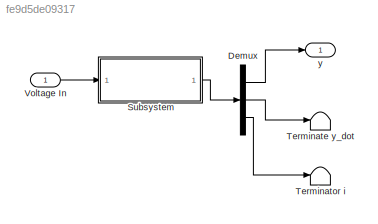
MODEL slx_fe9d5de09317
KIND model
CONFIG AbsTol = auto
CONFIG EnableMultiTasking = off
CONFIG FixedStep = auto
CONFIG MaxStep = auto
CONFIG MinStep = auto
CONFIG RelTol = 1e-3
CONFIG SampleTimeConstraint = Unconstrained
CONFIG SolverName = VariableStepAuto
CONFIG StartTime = 0.0
CONFIG StopTime = 10.0
BLOCK [Demux] Demux
  Outputs = 3
  Ports = [1, 3]
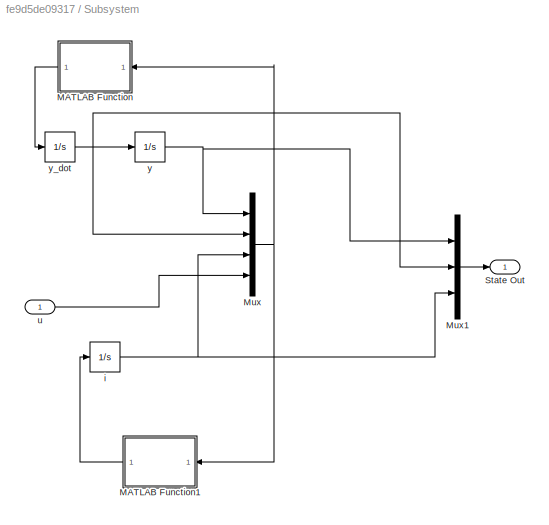
BLOCK [SubSystem] Subsystem
  Ports = [1, 1]
  RequestExecContextInheritance = off
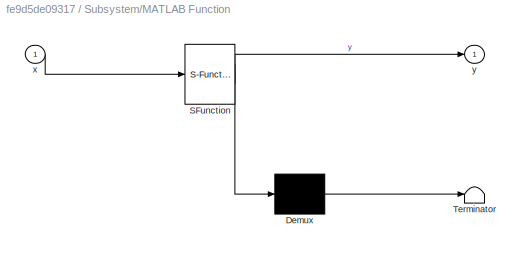
BLOCK [SubSystem] Subsystem/MATLAB Function
  ErrorFcn = Stateflow.Translate.translate
  PermitHierarchicalResolution = ExplicitOnly
  Ports = [1, 1]
  RequestExecContextInheritance = off
  SFBlockType = MATLAB Function
  TreatAsAtomicUnit = on
BLOCK [Demux] Subsystem/MATLAB Function/ Demux 
  Outputs = 1
  Ports = [1, 1]
BLOCK [S-Function] Subsystem/MATLAB Function/ SFunction 
  EnableBusSupport = on
  FunctionName = sf_sfun
  PortCounts = [1 2]
  Ports = [1, 2]
  SFcnIsStateOwnerBlock = off
  SFunctionDeploymentMode = off
  Tag = Stateflow S-Function 2
BLOCK [Terminator] Subsystem/MATLAB Function/ Terminator 
BLOCK [Inport] Subsystem/MATLAB Function/x
BLOCK [Outport] Subsystem/MATLAB Function/y
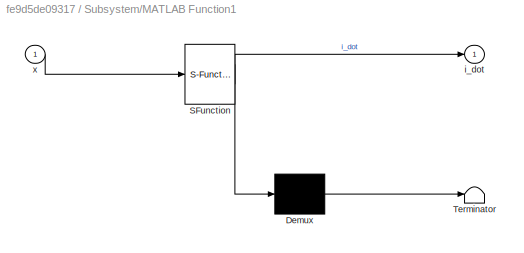
BLOCK [SubSystem] Subsystem/MATLAB Function1
  ErrorFcn = Stateflow.Translate.translate
  PermitHierarchicalResolution = ExplicitOnly
  Ports = [1, 1]
  RequestExecContextInheritance = off
  SFBlockType = MATLAB Function
  TreatAsAtomicUnit = on
BLOCK [Demux] Subsystem/MATLAB Function1/ Demux 
  Outputs = 1
  Ports = [1, 1]
BLOCK [S-Function] Subsystem/MATLAB Function1/ SFunction 
  EnableBusSupport = on
  FunctionName = sf_sfun
  PortCounts = [1 2]
  Ports = [1, 2]
  SFcnIsStateOwnerBlock = off
  SFunctionDeploymentMode = off
  Tag = Stateflow S-Function 1
BLOCK [Terminator] Subsystem/MATLAB Function1/ Terminator 
BLOCK [Outport] Subsystem/MATLAB Function1/i_dot
BLOCK [Inport] Subsystem/MATLAB Function1/x
BLOCK [Mux] Subsystem/Mux
  DisplayOption = bar
  Ports = [4, 1]
BLOCK [Mux] Subsystem/Mux1
  DisplayOption = bar
  Inputs = 3
  Ports = [3, 1]
BLOCK [Outport] Subsystem/State Out
BLOCK [Integrator] Subsystem/i
  Ports = [1, 1]
BLOCK [Inport] Subsystem/u
BLOCK [Integrator] Subsystem/y
  Ports = [1, 1]
BLOCK [Integrator] Subsystem/y_dot
  Ports = [1, 1]
BLOCK [Terminator] Terminate y_dot
BLOCK [Terminator] Terminator i
BLOCK [Inport] Voltage In
BLOCK [Outport] y
LINE Demux:1 -> y:1
LINE Demux:2 -> Terminate y_dot:1
LINE Demux:3 -> Terminator i:1
LINE Subsystem/MATLAB Function1:1 -> Subsystem/i:1
LINE Subsystem/MATLAB Function:1 -> Subsystem/y_dot:1
LINE Subsystem/Mux1:1 -> Subsystem/State Out:1
NET Subsystem/Mux:1 -> Subsystem/MATLAB Function1:1, Subsystem/MATLAB Function:1
NET Subsystem/i:1 -> Subsystem/Mux1:3, Subsystem/Mux:3
LINE Subsystem/u:1 -> Subsystem/Mux:4
NET Subsystem/y:1 -> Subsystem/Mux1:1, Subsystem/Mux:1
NET Subsystem/y_dot:1 -> Subsystem/Mux1:2, Subsystem/Mux:2, Subsystem/y:1
LINE Subsystem:1 -> Demux:1
LINE Voltage In:1 -> Subsystem:1
note: NET lines group one-source signal fan-out (src -> all destinations, sorted); 1:1 wires keep LINE
CHART Subsystem/MATLAB Function states=1 transitions=1
  STATE_LABEL 'eML_blk_kernel()'
  STATE_LABEL 'SCRIPT:\nfunction y = fcn(x)\n\ny0 = 1;\ng = 9.8;\nm = 1;\nR = 3;\nL = 1;\n\ny = x(3)^2/(m*(x(1))^2) - g;\n\n'
CHART Subsystem/MATLAB Function1 states=1 transitions=1
  STATE_LABEL 'eML_blk_kernel()'
  STATE_LABEL 'SCRIPT:\nfunction i_dot = fcn(x)\n\ny0 = 1;\ng = 9.8;\nm = 1;\nR = 3;\nL = 1;\n\ni_dot = x(4)/L -x(3)*R/L;\n'
CHART  states=0 transitions=0
CHART  states=0 transitions=0
